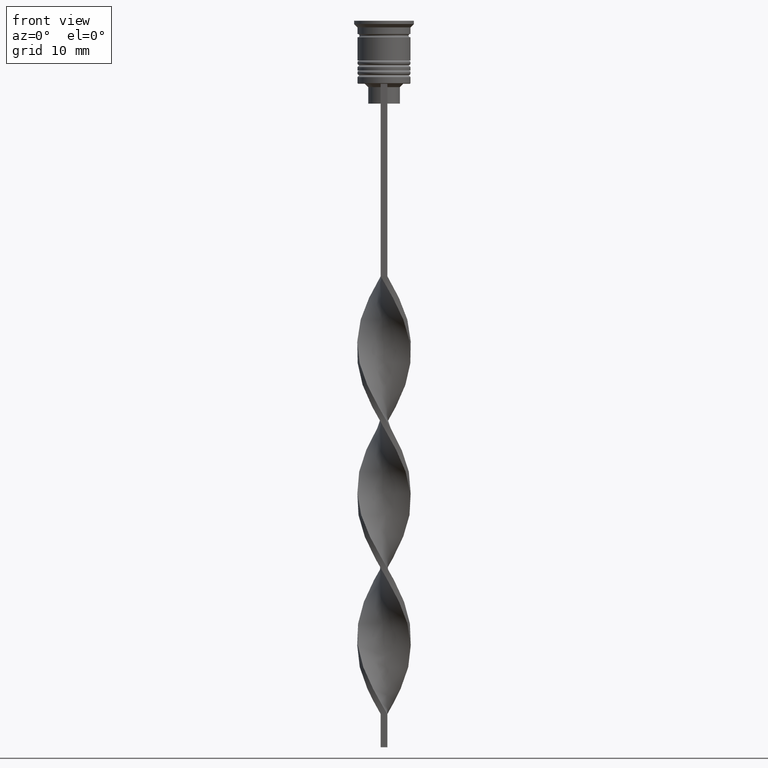
[diagram: clean part render]
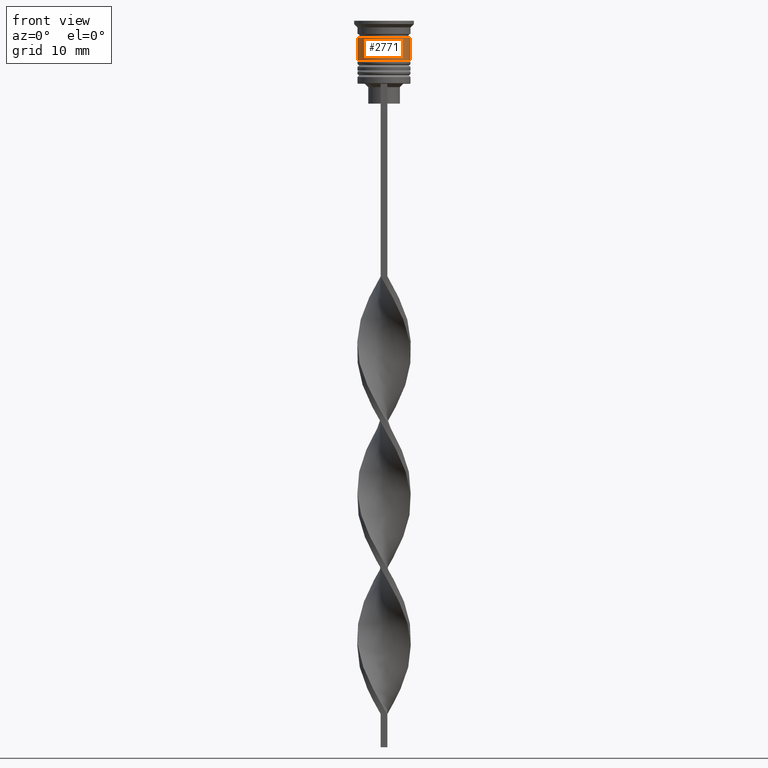
[diagram: same view with one face highlighted and labeled with its STEP entity id]
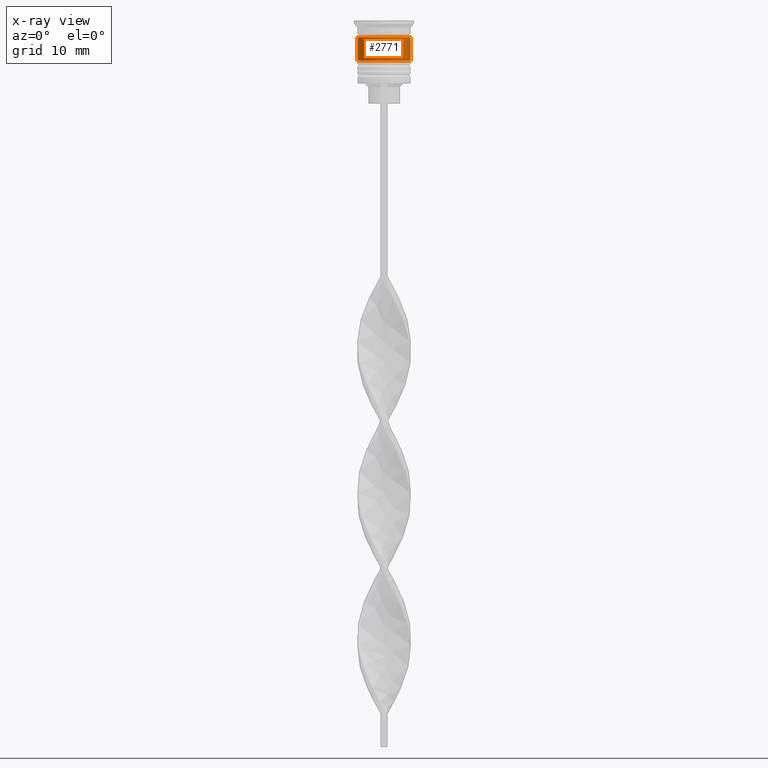
[diagram: x-ray of the same camera — body ghosted, the highlighted face saturated]
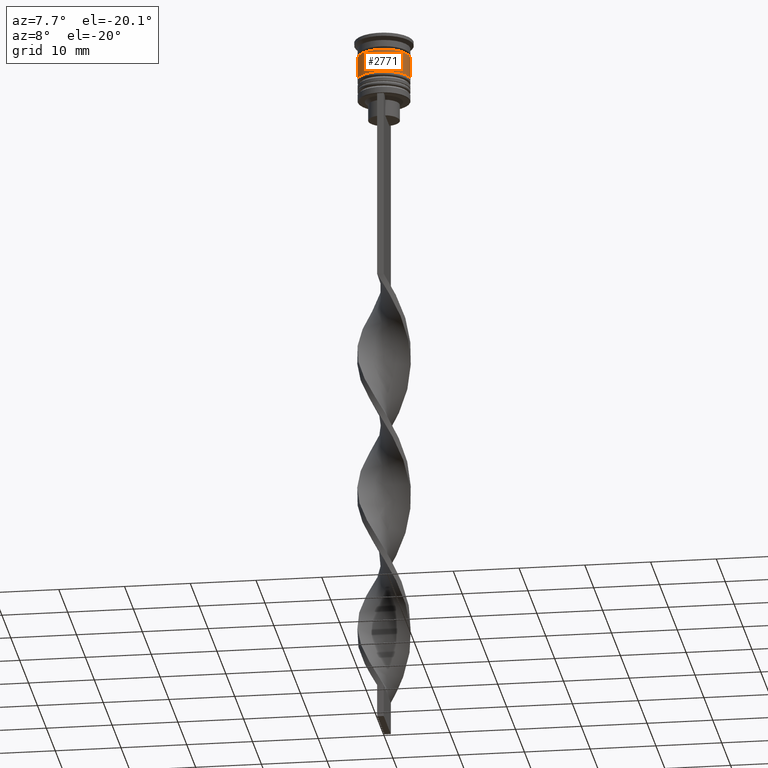
[diagram: same view with one face highlighted and labeled with its STEP entity id]
A machine part, front view. The second image highlights one B-rep face of the part: STEP entity #2771.
The next image is the same camera in x-ray: the body ghosted, the highlighted face saturated — about 0% of this face is hidden behind the body in this view.
A second angle (auxiliary view) of the same face is appended — the face is thin or edge-on in the first view.
In plain terms, the highlighted cylindrical surface (edge-blend (fillet) strip) has radius 4 mm, axis along (-0, -0, 1).
Its self-contained STEP definition (entity closure, byte-faithful):
#21 = EDGE_CURVE ( 'NONE', #3035, #1037, #2281, .T. ) ;
#133 = ORIENTED_EDGE ( 'NONE', *, *, #1665, .F. ) ;
#252 = DIRECTION ( 'NONE',  ( -0.000000000000000000, -0.000000000000000000, 1.000000000000000000 ) ) ;
#279 = ORIENTED_EDGE ( 'NONE', *, *, #1522, .F. ) ;
#390 = CARTESIAN_POINT ( 'NONE',  ( -4.000000000000000000, 4.898587196589412829E-16, -2.500000000000000000 ) ) ;
#878 = LINE ( 'NONE', #3469, #3559 ) ;
#928 = DIRECTION ( 'NONE',  ( 1.000000000000000000, 0.000000000000000000, 0.000000000000000000 ) ) ;
#938 = DIRECTION ( 'NONE',  ( -0.000000000000000000, -0.000000000000000000, 1.000000000000000000 ) ) ;
#974 = AXIS2_PLACEMENT_3D ( 'NONE', #2516, #1931, #1338 ) ;
#1013 = CARTESIAN_POINT ( 'NONE',  ( 4.000000000000000888, 0.000000000000000000, -6.000000000000000000 ) ) ;
#1037 = VERTEX_POINT ( 'NONE', #2532 ) ;
#1151 = AXIS2_PLACEMENT_3D ( 'NONE', #3460, #1464, #928 ) ;
#1202 = CYLINDRICAL_SURFACE ( 'NONE', #1151, 4.000000000000000000 ) ;
#1338 = DIRECTION ( 'NONE',  ( 1.000000000000000000, 0.000000000000000000, 0.000000000000000000 ) ) ;
#1370 = DIRECTION ( 'NONE',  ( 1.000000000000000000, 0.000000000000000000, 0.000000000000000000 ) ) ;
#1374 = CIRCLE ( 'NONE', #974, 4.000000000000000000 ) ;
#1399 = DIRECTION ( 'NONE',  ( -0.000000000000000000, -0.000000000000000000, 1.000000000000000000 ) ) ;
#1464 = DIRECTION ( 'NONE',  ( -0.000000000000000000, -0.000000000000000000, 1.000000000000000000 ) ) ;
#1522 = EDGE_CURVE ( 'NONE', #2350, #1037, #1374, .T. ) ;
#1612 = EDGE_LOOP ( 'NONE', ( #133, #2956, #3261, #279 ) ) ;
#1643 = VERTEX_POINT ( 'NONE', #1724 ) ;
#1665 = EDGE_CURVE ( 'NONE', #1643, #2350, #878, .T. ) ;
#1670 = CIRCLE ( 'NONE', #2809, 4.000000000000000888 ) ;
#1724 = CARTESIAN_POINT ( 'NONE',  ( -4.000000000000000888, 4.898587196589413815E-16, -6.000000000000000000 ) ) ;
#1762 = FACE_OUTER_BOUND ( 'NONE', #1612, .T. ) ;
#1931 = DIRECTION ( 'NONE',  ( -0.000000000000000000, -0.000000000000000000, 1.000000000000000000 ) ) ;
#2169 = EDGE_CURVE ( 'NONE', #1643, #3035, #1670, .T. ) ;
#2281 = LINE ( 'NONE', #2778, #2977 ) ;
#2350 = VERTEX_POINT ( 'NONE', #390 ) ;
#2516 = CARTESIAN_POINT ( 'NONE',  ( 0.000000000000000000, 0.000000000000000000, -2.500000000000000000 ) ) ;
#2532 = CARTESIAN_POINT ( 'NONE',  ( 4.000000000000000000, 0.000000000000000000, -2.500000000000000000 ) ) ;
#2771 = ADVANCED_FACE ( 'NONE', ( #1762 ), #1202, .T. ) ;
#2778 = CARTESIAN_POINT ( 'NONE',  ( 4.000000000000000000, 0.000000000000000000, 0.000000000000000000 ) ) ;
#2786 = CARTESIAN_POINT ( 'NONE',  ( 0.000000000000000000, 0.000000000000000000, -6.000000000000000000 ) ) ;
#2809 = AXIS2_PLACEMENT_3D ( 'NONE', #2786, #252, #1370 ) ;
#2956 = ORIENTED_EDGE ( 'NONE', *, *, #2169, .T. ) ;
#2977 = VECTOR ( 'NONE', #1399, 1000.000000000000000 ) ;
#3035 = VERTEX_POINT ( 'NONE', #1013 ) ;
#3261 = ORIENTED_EDGE ( 'NONE', *, *, #21, .T. ) ;
#3460 = CARTESIAN_POINT ( 'NONE',  ( 0.000000000000000000, 0.000000000000000000, 0.000000000000000000 ) ) ;
#3469 = CARTESIAN_POINT ( 'NONE',  ( -4.000000000000000000, 4.898587196589412829E-16, 0.000000000000000000 ) ) ;
#3559 = VECTOR ( 'NONE', #938, 1000.000000000000000 ) ;